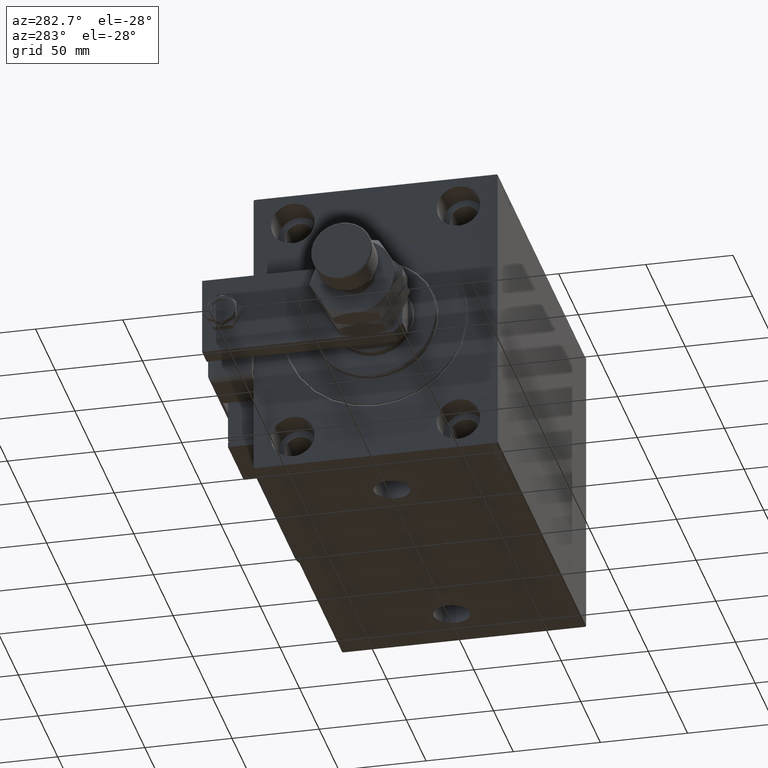
[diagram: clean part render]
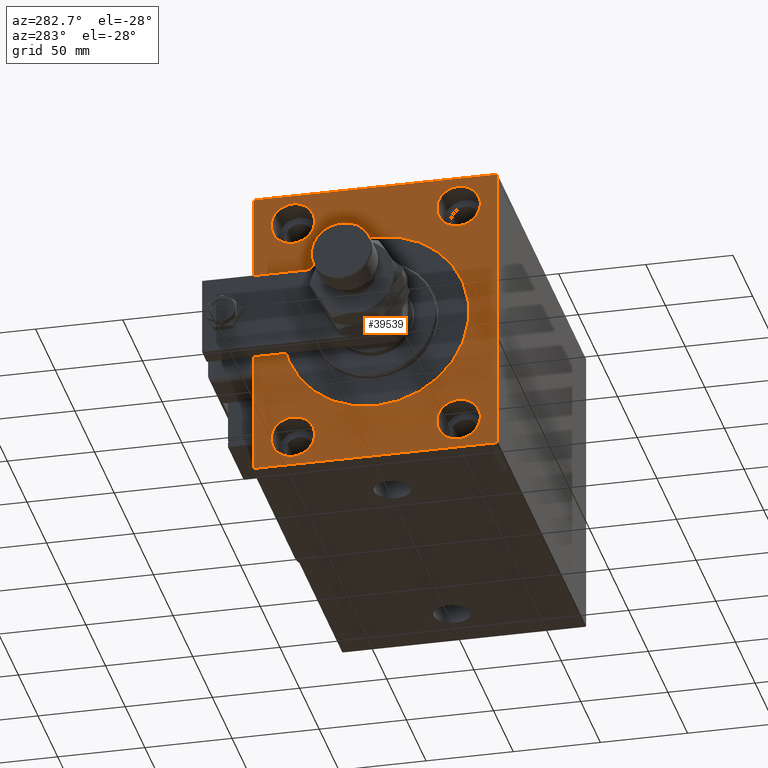
[diagram: same view with one face highlighted and labeled with its STEP entity id]
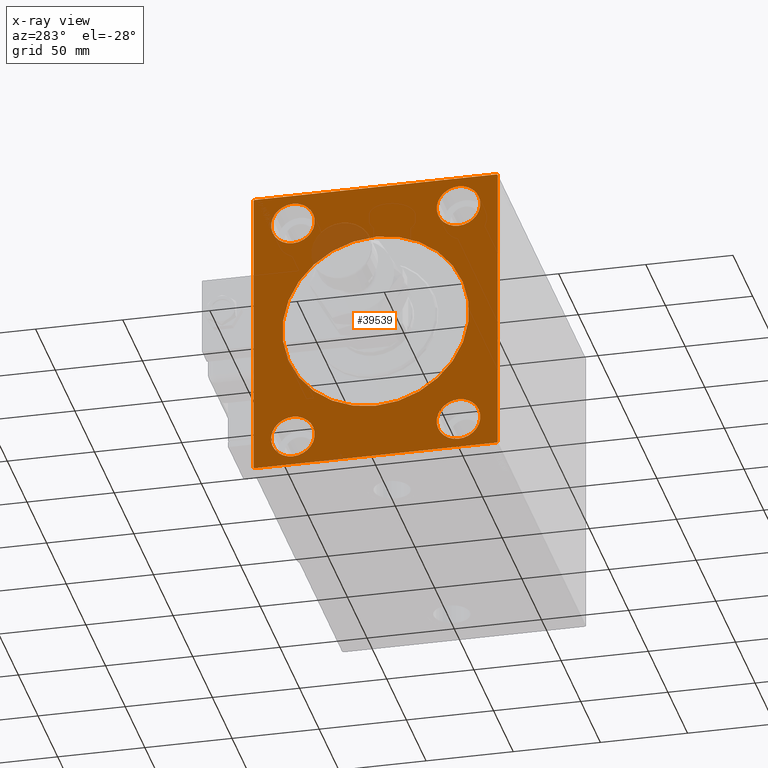
[diagram: x-ray of the same camera — body ghosted, the highlighted face saturated]
A machine part, auxiliary view. The second image highlights one B-rep face of the part: STEP entity #39539.
The next image is the same camera in x-ray: the body ghosted, the highlighted face saturated — about 3% of this face is hidden behind the body in this view.
In plain terms, the highlighted planar face has unit normal (1, 0, 0).
Its self-contained STEP definition (entity closure, byte-faithful):
#494 = EDGE_CURVE ( 'NONE', #15824, #34245, #41985, .T. ) ;
#723 = CARTESIAN_POINT ( 'NONE',  ( 0.000000000000000000, -47.49999999999997868, 55.00000000000000000 ) ) ;
#896 = DIRECTION ( 'NONE',  ( -0.000000000000000000, 0.7071067811865672237, 0.7071067811865279218 ) ) ;
#3130 = DIRECTION ( 'NONE',  ( -1.000000000000000000, 0.000000000000000000, 0.000000000000000000 ) ) ;
#3765 = CARTESIAN_POINT ( 'NONE',  ( 0.000000000000000000, 47.50000000000000711, 55.00000000000000000 ) ) ;
#4140 = ORIENTED_EDGE ( 'NONE', *, *, #23115, .F. ) ;
#4161 = CARTESIAN_POINT ( 'NONE',  ( 0.000000000000000000, 47.50000000000000711, -55.00000000000000711 ) ) ;
#4772 = CIRCLE ( 'NONE', #49474, 12.50000000000001066 ) ;
#4794 = VECTOR ( 'NONE', #896, 1000.000000000000000 ) ;
#5178 = DIRECTION ( 'NONE',  ( 0.000000000000000000, 0.000000000000000000, 1.000000000000000000 ) ) ;
#5624 = CIRCLE ( 'NONE', #61499, 12.49999999999999645 ) ;
#5885 = DIRECTION ( 'NONE',  ( 1.000000000000000000, 0.000000000000000000, 0.000000000000000000 ) ) ;
#6594 = EDGE_CURVE ( 'NONE', #34245, #15824, #5624, .T. ) ;
#7520 = EDGE_CURVE ( 'NONE', #60976, #32831, #49336, .T. ) ;
#8099 = CARTESIAN_POINT ( 'NONE',  ( 0.000000000000000000, -69.99999999999998579, 84.49999999999998579 ) ) ;
#8868 = CIRCLE ( 'NONE', #16963, 53.49999999999994316 ) ;
#9231 = CARTESIAN_POINT ( 'NONE',  ( 0.000000000000000000, -69.99999999999998579, -85.00000000000002842 ) ) ;
#9632 = LINE ( 'NONE', #57967, #28167 ) ;
#9987 = ORIENTED_EDGE ( 'NONE', *, *, #29869, .F. ) ;
#10084 = LINE ( 'NONE', #20245, #47410 ) ;
#10419 = DIRECTION ( 'NONE',  ( -1.000000000000000000, 0.000000000000000000, 0.000000000000000000 ) ) ;
#11438 = CARTESIAN_POINT ( 'NONE',  ( 0.000000000000000000, 69.50000000000004263, 85.00000000000000000 ) ) ;
#11706 = AXIS2_PLACEMENT_3D ( 'NONE', #33800, #38863, #5178 ) ;
#11997 = CARTESIAN_POINT ( 'NONE',  ( 0.000000000000000000, 47.50000000000000711, 67.50000000000000000 ) ) ;
#13286 = EDGE_LOOP ( 'NONE', ( #15453, #53560 ) ) ;
#13631 = CARTESIAN_POINT ( 'NONE',  ( 0.000000000000000000, 70.00000000000002842, -84.50000000000007105 ) ) ;
#14532 = ORIENTED_EDGE ( 'NONE', *, *, #31158, .T. ) ;
#14614 = VECTOR ( 'NONE', #18999, 1000.000000000000000 ) ;
#15453 = ORIENTED_EDGE ( 'NONE', *, *, #51793, .F. ) ;
#15824 = VERTEX_POINT ( 'NONE', #4161 ) ;
#16107 = FACE_BOUND ( 'NONE', #57221, .T. ) ;
#16138 = AXIS2_PLACEMENT_3D ( 'NONE', #49200, #16723, #25016 ) ;
#16723 = DIRECTION ( 'NONE',  ( 1.000000000000000000, 0.000000000000000000, 0.000000000000000000 ) ) ;
#16755 = EDGE_LOOP ( 'NONE', ( #14532, #42995 ) ) ;
#16963 = AXIS2_PLACEMENT_3D ( 'NONE', #19028, #38422, #52742 ) ;
#17223 = ORIENTED_EDGE ( 'NONE', *, *, #32025, .F. ) ;
#18200 = EDGE_LOOP ( 'NONE', ( #21775, #49871, #9987, #41376, #4140, #32811, #28693, #47228 ) ) ;
#18554 = DIRECTION ( 'NONE',  ( -0.000000000000000000, -0.7071067811865376918, 0.7071067811865573427 ) ) ;
#18761 = CIRCLE ( 'NONE', #60344, 12.50000000000001066 ) ;
#18999 = DIRECTION ( 'NONE',  ( 0.000000000000000000, -8.163404592832031500E-17, 1.000000000000000000 ) ) ;
#19028 = CARTESIAN_POINT ( 'NONE',  ( 0.000000000000000000, 0.000000000000000000, 0.000000000000000000 ) ) ;
#19033 = CARTESIAN_POINT ( 'NONE',  ( 0.000000000000000000, 70.00000000000001421, 84.50000000000001421 ) ) ;
#19086 = DIRECTION ( 'NONE',  ( 0.000000000000000000, 1.000000000000000000, 9.912705577010325549E-17 ) ) ;
#19290 = CARTESIAN_POINT ( 'NONE',  ( 0.000000000000000000, -47.49999999999999289, -80.00000000000000000 ) ) ;
#19907 = AXIS2_PLACEMENT_3D ( 'NONE', #11997, #30463, #21525 ) ;
#20245 = CARTESIAN_POINT ( 'NONE',  ( 0.000000000000000000, 70.00000000000001421, 85.00000000000000000 ) ) ;
#20282 = VERTEX_POINT ( 'NONE', #21398 ) ;
#20573 = CARTESIAN_POINT ( 'NONE',  ( 0.000000000000000000, -69.99999999999998579, 84.49999999999998579 ) ) ;
#20807 = EDGE_LOOP ( 'NONE', ( #61836, #51757 ) ) ;
#21049 = CIRCLE ( 'NONE', #56630, 53.49999999999994316 ) ;
#21398 = CARTESIAN_POINT ( 'NONE',  ( 0.000000000000000000, 69.50000000000007105, -85.00000000000001421 ) ) ;
#21525 = DIRECTION ( 'NONE',  ( 0.000000000000000000, 0.000000000000000000, 1.000000000000000000 ) ) ;
#21775 = ORIENTED_EDGE ( 'NONE', *, *, #27220, .F. ) ;
#21914 = AXIS2_PLACEMENT_3D ( 'NONE', #43053, #58289, #62425 ) ;
#22717 = ORIENTED_EDGE ( 'NONE', *, *, #37751, .F. ) ;
#23115 = EDGE_CURVE ( 'NONE', #40192, #40382, #56544, .T. ) ;
#23451 = CARTESIAN_POINT ( 'NONE',  ( 0.000000000000000000, 70.00000000000002842, -85.00000000000001421 ) ) ;
#23887 = VECTOR ( 'NONE', #19086, 1000.000000000000000 ) ;
#24002 = EDGE_CURVE ( 'NONE', #24890, #59368, #18761, .T. ) ;
#24890 = VERTEX_POINT ( 'NONE', #57892 ) ;
#24949 = CARTESIAN_POINT ( 'NONE',  ( 0.000000000000000000, 0.000000000000000000, 0.000000000000000000 ) ) ;
#25016 = DIRECTION ( 'NONE',  ( 0.000000000000000000, 0.000000000000000000, -1.000000000000000000 ) ) ;
#25964 = EDGE_CURVE ( 'NONE', #60662, #20282, #34012, .T. ) ;
#27220 = EDGE_CURVE ( 'NONE', #56391, #62201, #56565, .T. ) ;
#27272 = CARTESIAN_POINT ( 'NONE',  ( 0.000000000000000000, -69.99999999999998579, -84.50000000000004263 ) ) ;
#27381 = DIRECTION ( 'NONE',  ( -1.000000000000000000, 0.000000000000000000, 0.000000000000000000 ) ) ;
#27561 = EDGE_LOOP ( 'NONE', ( #30909, #22717 ) ) ;
#28036 = DIRECTION ( 'NONE',  ( -1.000000000000000000, 0.000000000000000000, 0.000000000000000000 ) ) ;
#28167 = VECTOR ( 'NONE', #18554, 1000.000000000000114 ) ;
#28577 = EDGE_CURVE ( 'NONE', #40192, #20282, #45174, .T. ) ;
#28693 = ORIENTED_EDGE ( 'NONE', *, *, #25964, .F. ) ;
#29349 = CARTESIAN_POINT ( 'NONE',  ( 0.000000000000000000, -47.49999999999997868, 80.00000000000001421 ) ) ;
#29514 = CARTESIAN_POINT ( 'NONE',  ( 0.000000000000000000, -47.49999999999999289, -67.50000000000000000 ) ) ;
#29578 = DIRECTION ( 'NONE',  ( -1.000000000000000000, 0.000000000000000000, 0.000000000000000000 ) ) ;
#29799 = FACE_OUTER_BOUND ( 'NONE', #18200, .T. ) ;
#29869 = EDGE_CURVE ( 'NONE', #31772, #59627, #10084, .T. ) ;
#29933 = DIRECTION ( 'NONE',  ( 0.000000000000000000, -0.7071067811865573427, -0.7071067811865376918 ) ) ;
#30463 = DIRECTION ( 'NONE',  ( -1.000000000000000000, 0.000000000000000000, 0.000000000000000000 ) ) ;
#30712 = EDGE_CURVE ( 'NONE', #36899, #31884, #8868, .T. ) ;
#30909 = ORIENTED_EDGE ( 'NONE', *, *, #7520, .F. ) ;
#31158 = EDGE_CURVE ( 'NONE', #31884, #36899, #21049, .T. ) ;
#31772 = VERTEX_POINT ( 'NONE', #11438 ) ;
#31884 = VERTEX_POINT ( 'NONE', #47062 ) ;
#32025 = EDGE_CURVE ( 'NONE', #59368, #24890, #47361, .T. ) ;
#32292 = AXIS2_PLACEMENT_3D ( 'NONE', #29514, #10419, #49548 ) ;
#32411 = CARTESIAN_POINT ( 'NONE',  ( 0.000000000000000000, -69.99999999999998579, 84.99999999999998579 ) ) ;
#32480 = CARTESIAN_POINT ( 'NONE',  ( 0.000000000000000000, 47.50000000000000711, 67.50000000000000000 ) ) ;
#32811 = ORIENTED_EDGE ( 'NONE', *, *, #28577, .T. ) ;
#32831 = VERTEX_POINT ( 'NONE', #19290 ) ;
#33737 = DIRECTION ( 'NONE',  ( 0.000000000000000000, 0.000000000000000000, 1.000000000000000000 ) ) ;
#33800 = CARTESIAN_POINT ( 'NONE',  ( 0.000000000000000000, -47.49999999999997868, 67.50000000000000000 ) ) ;
#34012 = LINE ( 'NONE', #9231, #23887 ) ;
#34245 = VERTEX_POINT ( 'NONE', #43045 ) ;
#34292 = VERTEX_POINT ( 'NONE', #29349 ) ;
#34361 = CARTESIAN_POINT ( 'NONE',  ( 0.000000000000000000, 47.50000000000000711, -67.50000000000000000 ) ) ;
#34402 = EDGE_CURVE ( 'NONE', #51844, #34292, #4772, .T. ) ;
#34700 = CARTESIAN_POINT ( 'NONE',  ( 0.000000000000000000, 70.00000000000002842, -84.50000000000007105 ) ) ;
#36899 = VERTEX_POINT ( 'NONE', #52751 ) ;
#36911 = DIRECTION ( 'NONE',  ( 0.000000000000000000, 0.000000000000000000, 1.000000000000000000 ) ) ;
#37751 = EDGE_CURVE ( 'NONE', #32831, #60976, #59670, .T. ) ;
#38422 = DIRECTION ( 'NONE',  ( 1.000000000000000000, 0.000000000000000000, 0.000000000000000000 ) ) ;
#38863 = DIRECTION ( 'NONE',  ( -1.000000000000000000, 0.000000000000000000, 0.000000000000000000 ) ) ;
#39131 = CIRCLE ( 'NONE', #11706, 12.50000000000001066 ) ;
#39539 = ADVANCED_FACE ( 'NONE', ( #50126, #40261, #54286, #16107, #45353, #29799 ), #40569, .F. ) ;
#39944 = VECTOR ( 'NONE', #46075, 1000.000000000000114 ) ;
#40192 = VERTEX_POINT ( 'NONE', #13631 ) ;
#40261 = FACE_BOUND ( 'NONE', #20807, .T. ) ;
#40382 = VERTEX_POINT ( 'NONE', #19033 ) ;
#40498 = CARTESIAN_POINT ( 'NONE',  ( 0.000000000000000000, -69.50000000000001421, -85.00000000000002842 ) ) ;
#40569 = PLANE ( 'NONE',  #16138 ) ;
#41376 = ORIENTED_EDGE ( 'NONE', *, *, #44071, .T. ) ;
#41622 = LINE ( 'NONE', #46400, #39944 ) ;
#41985 = CIRCLE ( 'NONE', #45008, 12.49999999999999645 ) ;
#42240 = DIRECTION ( 'NONE',  ( 0.000000000000000000, 0.000000000000000000, 1.000000000000000000 ) ) ;
#42995 = ORIENTED_EDGE ( 'NONE', *, *, #30712, .T. ) ;
#43045 = CARTESIAN_POINT ( 'NONE',  ( 0.000000000000000000, 47.50000000000000711, -80.00000000000000000 ) ) ;
#43053 = CARTESIAN_POINT ( 'NONE',  ( 0.000000000000000000, -47.49999999999999289, -67.50000000000000000 ) ) ;
#44071 = EDGE_CURVE ( 'NONE', #31772, #40382, #41622, .T. ) ;
#45008 = AXIS2_PLACEMENT_3D ( 'NONE', #46701, #3130, #42240 ) ;
#45174 = LINE ( 'NONE', #34700, #51446 ) ;
#45353 = FACE_BOUND ( 'NONE', #27561, .T. ) ;
#46075 = DIRECTION ( 'NONE',  ( -0.000000000000000000, 0.7071067811865376918, -0.7071067811865573427 ) ) ;
#46400 = CARTESIAN_POINT ( 'NONE',  ( 0.000000000000000000, 69.50000000000004263, 85.00000000000000000 ) ) ;
#46701 = CARTESIAN_POINT ( 'NONE',  ( 0.000000000000000000, 47.50000000000000711, -67.50000000000000000 ) ) ;
#47062 = CARTESIAN_POINT ( 'NONE',  ( 0.000000000000000000, 0.000000000000000000, 53.49999999999994316 ) ) ;
#47228 = ORIENTED_EDGE ( 'NONE', *, *, #60872, .T. ) ;
#47361 = CIRCLE ( 'NONE', #19907, 12.50000000000001066 ) ;
#47410 = VECTOR ( 'NONE', #48880, 1000.000000000000000 ) ;
#48126 = CARTESIAN_POINT ( 'NONE',  ( 0.000000000000000000, -47.49999999999999289, -55.00000000000000711 ) ) ;
#48819 = DIRECTION ( 'NONE',  ( 0.000000000000000000, 0.000000000000000000, -1.000000000000000000 ) ) ;
#48880 = DIRECTION ( 'NONE',  ( 0.000000000000000000, -1.000000000000000000, -9.912705577010325549E-17 ) ) ;
#49200 = CARTESIAN_POINT ( 'NONE',  ( 0.000000000000000000, 0.000000000000000000, 0.000000000000000000 ) ) ;
#49336 = CIRCLE ( 'NONE', #21914, 12.49999999999999645 ) ;
#49339 = VECTOR ( 'NONE', #51804, 1000.000000000000000 ) ;
#49474 = AXIS2_PLACEMENT_3D ( 'NONE', #62346, #28036, #33737 ) ;
#49548 = DIRECTION ( 'NONE',  ( 0.000000000000000000, 0.000000000000000000, 1.000000000000000000 ) ) ;
#49848 = LINE ( 'NONE', #20573, #4794 ) ;
#49871 = ORIENTED_EDGE ( 'NONE', *, *, #55924, .T. ) ;
#50126 = FACE_BOUND ( 'NONE', #16755, .T. ) ;
#51446 = VECTOR ( 'NONE', #29933, 1000.000000000000114 ) ;
#51757 = ORIENTED_EDGE ( 'NONE', *, *, #6594, .F. ) ;
#51793 = EDGE_CURVE ( 'NONE', #34292, #51844, #39131, .T. ) ;
#51804 = DIRECTION ( 'NONE',  ( 0.000000000000000000, 0.000000000000000000, -1.000000000000000000 ) ) ;
#51844 = VERTEX_POINT ( 'NONE', #723 ) ;
#52742 = DIRECTION ( 'NONE',  ( 0.000000000000000000, 0.000000000000000000, -1.000000000000000000 ) ) ;
#52751 = CARTESIAN_POINT ( 'NONE',  ( 0.000000000000000000, 6.551860375438332793E-15, -53.49999999999994316 ) ) ;
#53560 = ORIENTED_EDGE ( 'NONE', *, *, #34402, .F. ) ;
#54056 = DIRECTION ( 'NONE',  ( 0.000000000000000000, 0.000000000000000000, 1.000000000000000000 ) ) ;
#54286 = FACE_BOUND ( 'NONE', #13286, .T. ) ;
#55924 = EDGE_CURVE ( 'NONE', #56391, #59627, #49848, .T. ) ;
#56391 = VERTEX_POINT ( 'NONE', #8099 ) ;
#56544 = LINE ( 'NONE', #23451, #14614 ) ;
#56565 = LINE ( 'NONE', #32411, #49339 ) ;
#56630 = AXIS2_PLACEMENT_3D ( 'NONE', #24949, #5885, #48819 ) ;
#57221 = EDGE_LOOP ( 'NONE', ( #62764, #17223 ) ) ;
#57892 = CARTESIAN_POINT ( 'NONE',  ( 0.000000000000000000, 47.50000000000000711, 80.00000000000001421 ) ) ;
#57967 = CARTESIAN_POINT ( 'NONE',  ( 0.000000000000000000, -69.50000000000001421, -85.00000000000002842 ) ) ;
#58289 = DIRECTION ( 'NONE',  ( -1.000000000000000000, 0.000000000000000000, 0.000000000000000000 ) ) ;
#59368 = VERTEX_POINT ( 'NONE', #3765 ) ;
#59627 = VERTEX_POINT ( 'NONE', #60903 ) ;
#59670 = CIRCLE ( 'NONE', #32292, 12.49999999999999645 ) ;
#60344 = AXIS2_PLACEMENT_3D ( 'NONE', #32480, #27381, #36911 ) ;
#60662 = VERTEX_POINT ( 'NONE', #40498 ) ;
#60872 = EDGE_CURVE ( 'NONE', #60662, #62201, #9632, .T. ) ;
#60903 = CARTESIAN_POINT ( 'NONE',  ( 0.000000000000000000, -69.49999999999997158, 84.99999999999998579 ) ) ;
#60976 = VERTEX_POINT ( 'NONE', #48126 ) ;
#61499 = AXIS2_PLACEMENT_3D ( 'NONE', #34361, #29578, #54056 ) ;
#61836 = ORIENTED_EDGE ( 'NONE', *, *, #494, .F. ) ;
#62201 = VERTEX_POINT ( 'NONE', #27272 ) ;
#62346 = CARTESIAN_POINT ( 'NONE',  ( 0.000000000000000000, -47.49999999999997868, 67.50000000000000000 ) ) ;
#62425 = DIRECTION ( 'NONE',  ( 0.000000000000000000, 0.000000000000000000, 1.000000000000000000 ) ) ;
#62764 = ORIENTED_EDGE ( 'NONE', *, *, #24002, .F. ) ;